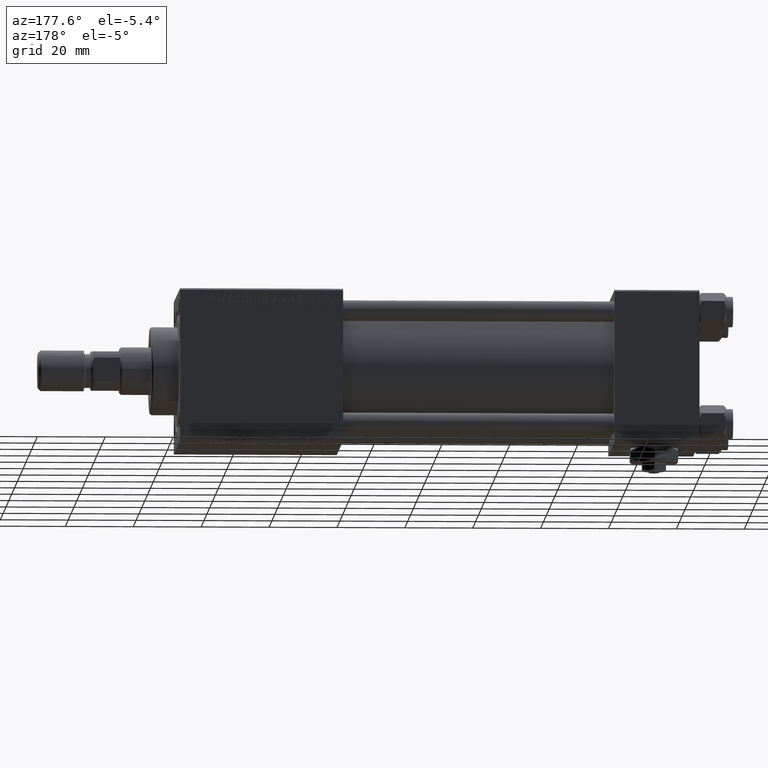
[diagram: clean part render]
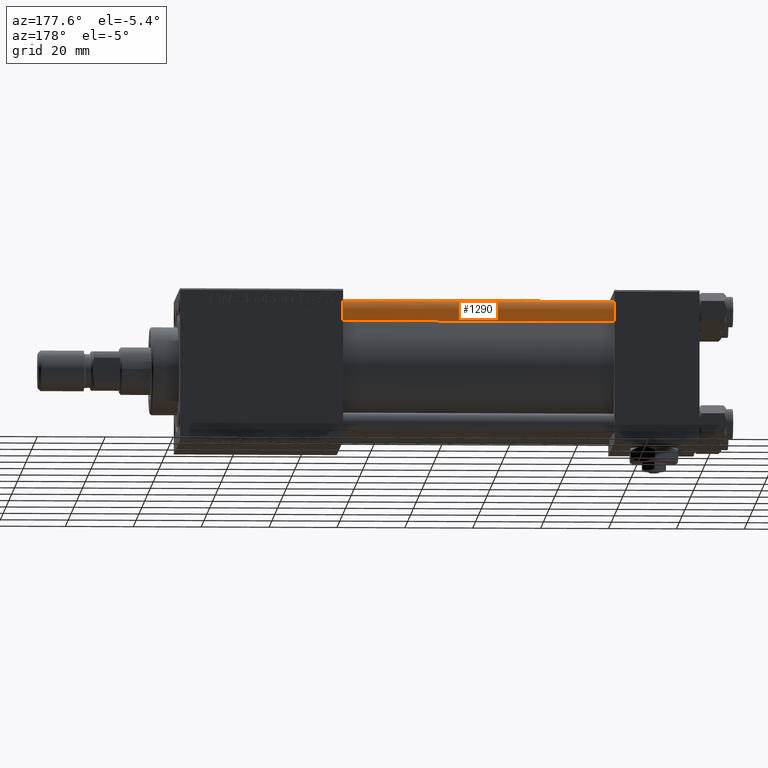
[diagram: same view with one face highlighted and labeled with its STEP entity id]
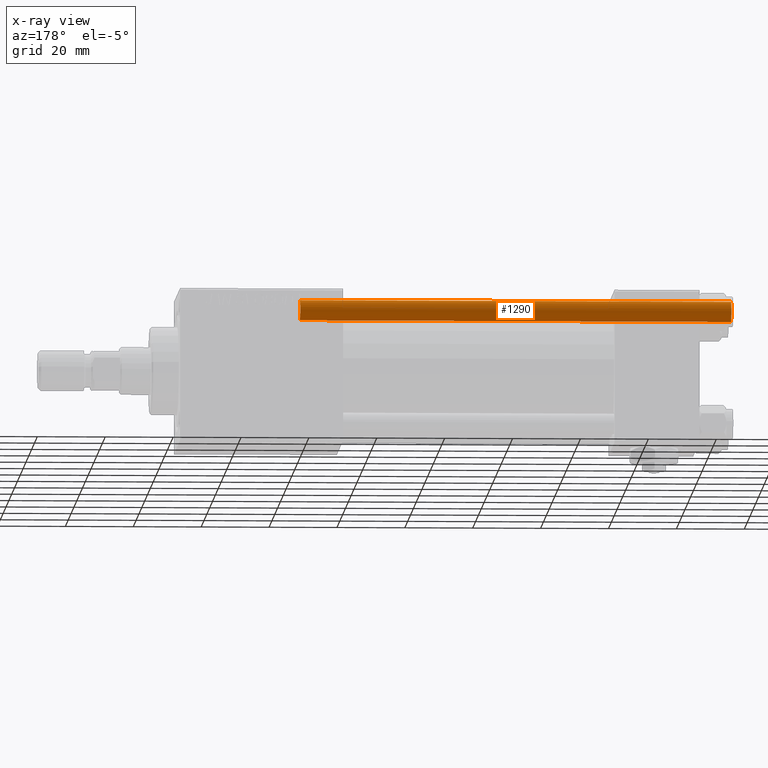
[diagram: x-ray of the same camera — body ghosted, the highlighted face saturated]
A machine part, auxiliary view. The second image highlights one B-rep face of the part: STEP entity #1290.
The next image is the same camera in x-ray: the body ghosted, the highlighted face saturated — about 0% of this face is hidden behind the body in this view.
In plain terms, the highlighted cylindrical surface (edge-blend (fillet) strip) has radius 3 mm, axis along (-1, 0, 0).
Its self-contained STEP definition (entity closure, byte-faithful):
#1290 = ADVANCED_FACE ( 'NONE', ( #46972 ), #51210, .T. ) ;
#2481 = CARTESIAN_POINT ( 'NONE',  ( 3.000000000000000444, 3.673940397442060361E-16, 0.5000000000000281997 ) ) ;
#6825 = CARTESIAN_POINT ( 'NONE',  ( 0.000000000000000000, 0.000000000000000000, 127.4999999999999716 ) ) ;
#7874 = LINE ( 'NONE', #24827, #26156 ) ;
#10538 = DIRECTION ( 'NONE',  ( 0.000000000000000000, 0.000000000000000000, -1.000000000000000000 ) ) ;
#14629 = CIRCLE ( 'NONE', #44270, 3.000000000000000444 ) ;
#15405 = DIRECTION ( 'NONE',  ( -0.000000000000000000, -0.000000000000000000, 1.000000000000000000 ) ) ;
#16347 = VERTEX_POINT ( 'NONE', #2481 ) ;
#17936 = CARTESIAN_POINT ( 'NONE',  ( 3.000000000000000444, 3.673940397442060361E-16, 128.0000000000000000 ) ) ;
#20516 = ORIENTED_EDGE ( 'NONE', *, *, #27733, .T. ) ;
#23354 = AXIS2_PLACEMENT_3D ( 'NONE', #6825, #10538, #35185 ) ;
#23460 = ORIENTED_EDGE ( 'NONE', *, *, #29210, .T. ) ;
#23501 = ORIENTED_EDGE ( 'NONE', *, *, #36668, .T. ) ;
#24827 = CARTESIAN_POINT ( 'NONE',  ( -3.000000000000000444, 0.000000000000000000, 128.0000000000000000 ) ) ;
#26156 = VECTOR ( 'NONE', #37788, 1000.000000000000000 ) ;
#26477 = VERTEX_POINT ( 'NONE', #43391 ) ;
#27733 = EDGE_CURVE ( 'NONE', #16347, #51213, #14629, .T. ) ;
#29210 = EDGE_CURVE ( 'NONE', #26477, #16347, #42317, .T. ) ;
#29806 = CARTESIAN_POINT ( 'NONE',  ( 0.000000000000000000, 0.000000000000000000, 128.0000000000000000 ) ) ;
#30062 = DIRECTION ( 'NONE',  ( -1.000000000000000000, 0.000000000000000000, 0.000000000000000000 ) ) ;
#31592 = DIRECTION ( 'NONE',  ( 1.000000000000000000, 0.000000000000000000, 0.000000000000000000 ) ) ;
#33800 = CARTESIAN_POINT ( 'NONE',  ( -3.000000000000000444, 0.000000000000000000, 127.4999999999999716 ) ) ;
#35185 = DIRECTION ( 'NONE',  ( 1.000000000000000000, 0.000000000000000000, 0.000000000000000000 ) ) ;
#36118 = VERTEX_POINT ( 'NONE', #33800 ) ;
#36668 = EDGE_CURVE ( 'NONE', #36118, #26477, #45317, .T. ) ;
#37788 = DIRECTION ( 'NONE',  ( -0.000000000000000000, -0.000000000000000000, -1.000000000000000000 ) ) ;
#38512 = DIRECTION ( 'NONE',  ( -0.000000000000000000, -0.000000000000000000, -1.000000000000000000 ) ) ;
#42317 = LINE ( 'NONE', #17936, #51092 ) ;
#42457 = AXIS2_PLACEMENT_3D ( 'NONE', #29806, #38512, #30062 ) ;
#43391 = CARTESIAN_POINT ( 'NONE',  ( 3.000000000000000444, 3.673940397442060361E-16, 127.4999999999999716 ) ) ;
#44270 = AXIS2_PLACEMENT_3D ( 'NONE', #51694, #15405, #31592 ) ;
#45317 = CIRCLE ( 'NONE', #23354, 3.000000000000000444 ) ;
#45503 = ORIENTED_EDGE ( 'NONE', *, *, #50873, .F. ) ;
#46972 = FACE_OUTER_BOUND ( 'NONE', #51028, .T. ) ;
#50873 = EDGE_CURVE ( 'NONE', #36118, #51213, #7874, .T. ) ;
#51028 = EDGE_LOOP ( 'NONE', ( #23501, #23460, #20516, #45503 ) ) ;
#51092 = VECTOR ( 'NONE', #51299, 1000.000000000000000 ) ;
#51184 = CARTESIAN_POINT ( 'NONE',  ( -3.000000000000000444, 0.000000000000000000, 0.5000000000000281997 ) ) ;
#51210 = CYLINDRICAL_SURFACE ( 'NONE', #42457, 3.000000000000000444 ) ;
#51213 = VERTEX_POINT ( 'NONE', #51184 ) ;
#51299 = DIRECTION ( 'NONE',  ( -0.000000000000000000, -0.000000000000000000, -1.000000000000000000 ) ) ;
#51694 = CARTESIAN_POINT ( 'NONE',  ( 0.000000000000000000, 0.000000000000000000, 0.5000000000000281997 ) ) ;